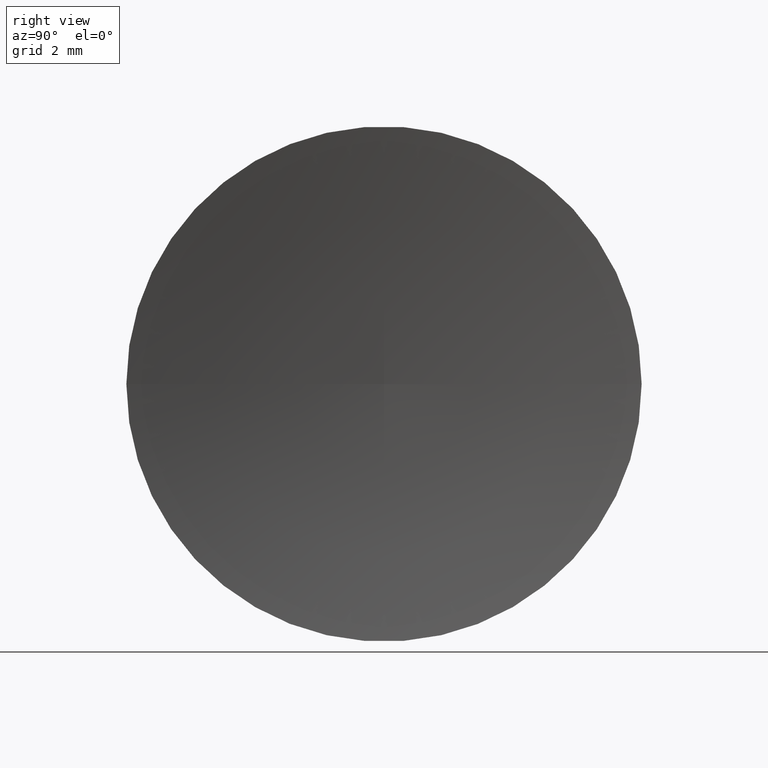
[diagram: clean part render]
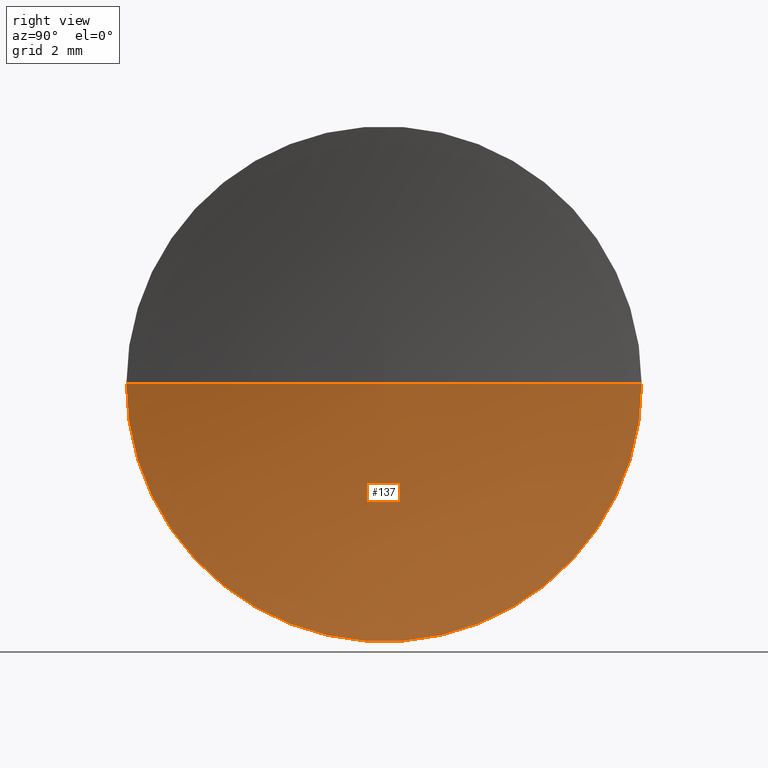
[diagram: same view with one face highlighted and labeled with its STEP entity id]
A machine part, right view. The second image highlights one B-rep face of the part: STEP entity #137.
In plain terms, the highlighted toroidal blend (fillet) surface has major radius 0.0035 mm and minor (blend) radius 41.3 mm.
Its self-contained STEP definition (entity closure, byte-faithful):
#7 = EDGE_LOOP ( 'NONE', ( #57, #43, #66 ) ) ;
#9 = DIRECTION ( 'NONE',  ( 0.0000000000000000000, -1.000000000000000000, 0.0000000000000000000 ) ) ;
#15 = CARTESIAN_POINT ( 'NONE',  ( 87.65442246817359300, 26.06576409914319800, 0.0000000000000000000 ) ) ;
#21 = DIRECTION ( 'NONE',  ( -1.000000000000000000, 4.058245434298766700E-016, -0.0000000000000000000 ) ) ;
#25 = VERTEX_POINT ( 'NONE', #161 ) ;
#31 = DIRECTION ( 'NONE',  ( 0.0000000000000000000, -0.0000000000000000000, -1.000000000000000000 ) ) ;
#33 = CIRCLE ( 'NONE', #101, 8.000000000000000000 ) ;
#34 = CARTESIAN_POINT ( 'NONE',  ( 87.65442246817359300, 26.06225218280606600, 0.0000000000000000000 ) ) ;
#39 = EDGE_CURVE ( 'NONE', #80, #25, #33, .T. ) ;
#40 = DIRECTION ( 'NONE',  ( -4.058245434298766700E-016, -1.000000000000000000, 0.0000000000000000000 ) ) ;
#43 = ORIENTED_EDGE ( 'NONE', *, *, #122, .T. ) ;
#45 = AXIS2_PLACEMENT_3D ( 'NONE', #34, #21, #40 ) ;
#56 = VERTEX_POINT ( 'NONE', #89 ) ;
#57 = ORIENTED_EDGE ( 'NONE', *, *, #39, .F. ) ;
#60 = DIRECTION ( 'NONE',  ( -4.969917281268344600E-032, -1.224646799147353200E-016, 1.000000000000000000 ) ) ;
#66 = ORIENTED_EDGE ( 'NONE', *, *, #103, .F. ) ;
#70 = CARTESIAN_POINT ( 'NONE',  ( 47.13734215622306300, 34.06225218280610500, 9.797174393178849300E-016 ) ) ;
#80 = VERTEX_POINT ( 'NONE', #70 ) ;
#82 = DIRECTION ( 'NONE',  ( -1.000000000000000000, 4.058245434298766700E-016, -0.0000000000000000000 ) ) ;
#84 = AXIS2_PLACEMENT_3D ( 'NONE', #97, #60, #112 ) ;
#89 = CARTESIAN_POINT ( 'NONE',  ( 46.35442261749025100, 26.06225218280608400, 0.0000000000000000000 ) ) ;
#90 = CARTESIAN_POINT ( 'NONE',  ( 47.13734215622306300, 26.06225218280608400, 0.0000000000000000000 ) ) ;
#97 = CARTESIAN_POINT ( 'NONE',  ( 87.65442246817359300, 26.05874026646893400, -4.300857101141491200E-019 ) ) ;
#100 = CIRCLE ( 'NONE', #132, 41.30000000000000400 ) ;
#101 = AXIS2_PLACEMENT_3D ( 'NONE', #90, #82, #9 ) ;
#102 = CIRCLE ( 'NONE', #84, 41.30000000000000400 ) ;
#103 = EDGE_CURVE ( 'NONE', #25, #56, #100, .T. ) ;
#109 = TOROIDAL_SURFACE ( 'NONE', #45, -0.003511916337131583800, 41.30000000000000400 ) ;
#112 = DIRECTION ( 'NONE',  ( 0.0000000000000000000, -1.000000000000000000, -1.224646799147353200E-016 ) ) ;
#115 = DIRECTION ( 'NONE',  ( -1.000000000000000000, 0.0000000000000000000, 0.0000000000000000000 ) ) ;
#116 = FACE_OUTER_BOUND ( 'NONE', #7, .T. ) ;
#122 = EDGE_CURVE ( 'NONE', #80, #56, #102, .T. ) ;
#132 = AXIS2_PLACEMENT_3D ( 'NONE', #15, #31, #115 ) ;
#137 = ADVANCED_FACE ( 'NONE', ( #116 ), #109, .F. ) ;
#161 = CARTESIAN_POINT ( 'NONE',  ( 47.13734215622306300, 18.06225218280607000, 0.0000000000000000000 ) ) ;